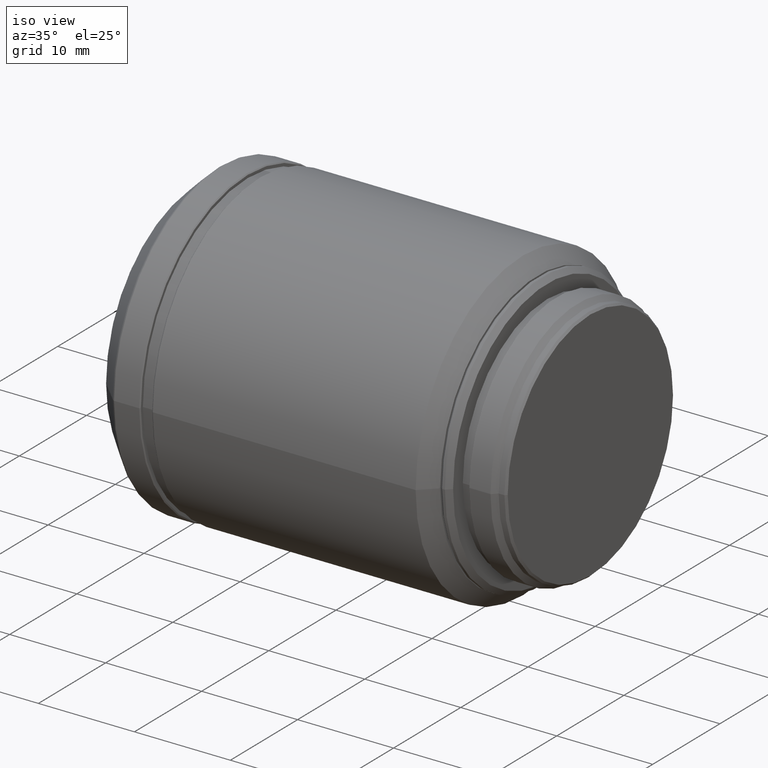
[diagram: clean part render]
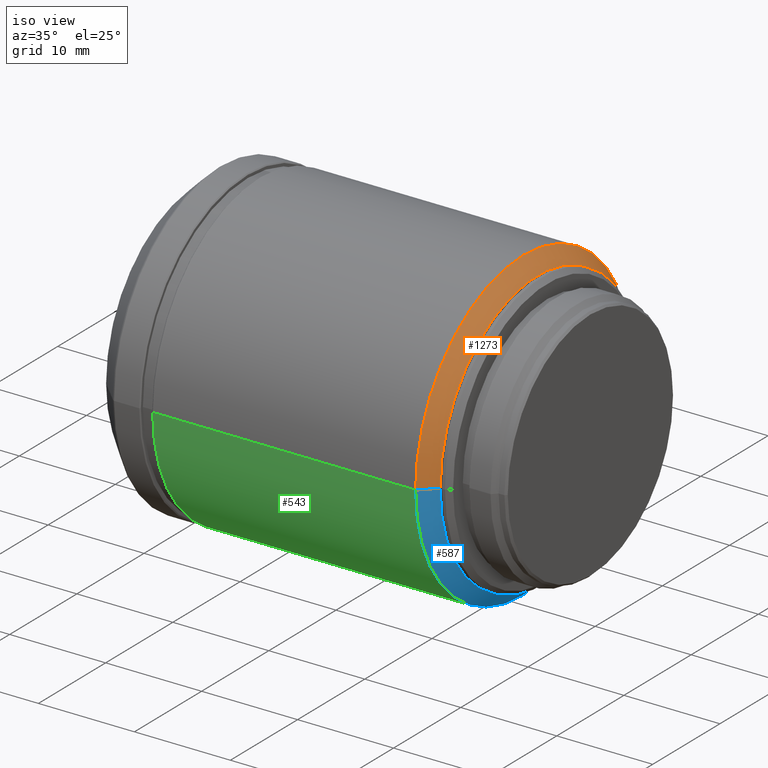
[diagram: same view with three faces highlighted in distinct colors, each labeled with its STEP entity id]
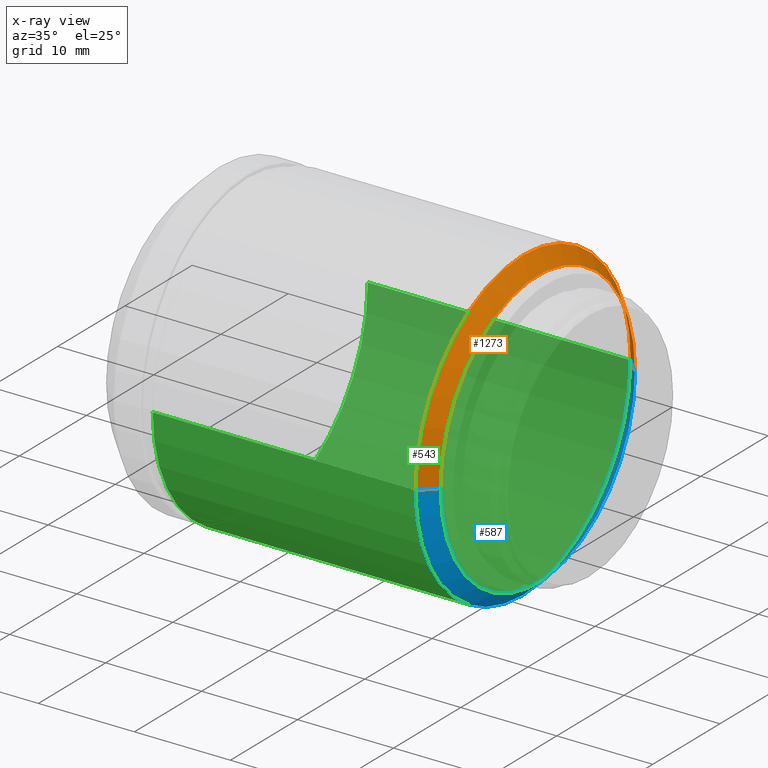
[diagram: x-ray of the same camera — body ghosted, the three highlighted faces saturated]
A machine part, iso view with three faces highlighted in distinct colors.
The next image is the same camera in x-ray (body ghosted, the three faces saturated) — at least one of them is partly hidden behind the body in this view.
Their STEP definitions:

[orange] entity #1273 — the highlighted conical surface has half-angle 45 deg.
#121 = CARTESIAN_POINT ( 'NONE',  ( 27.76000000000000156, -1.415423776414540206E-16, 0.000000000000000000 ) ) ;
#123 = DIRECTION ( 'NONE',  ( -2.168404344971008868E-16, 1.000000000000000000, 0.000000000000000000 ) ) ;
#196 = CARTESIAN_POINT ( 'NONE',  ( 26.25999999999999801, -16.00000000000000000, -1.959434878635769865E-15 ) ) ;
#206 = AXIS2_PLACEMENT_3D ( 'NONE', #699, #1174, #123 ) ;
#221 = VERTEX_POINT ( 'NONE', #1239 ) ;
#254 = VECTOR ( 'NONE', #1331, 1000.000000000000000 ) ;
#266 = EDGE_CURVE ( 'NONE', #1405, #1027, #1367, .T. ) ;
#331 = LINE ( 'NONE', #690, #790 ) ;
#345 = CARTESIAN_POINT ( 'NONE',  ( 27.76000000000000156, -14.50000000000000000, -1.775737858763660240E-15 ) ) ;
#366 = ORIENTED_EDGE ( 'NONE', *, *, #997, .T. ) ;
#381 = EDGE_CURVE ( 'NONE', #810, #1027, #1238, .T. ) ;
#526 = CARTESIAN_POINT ( 'NONE',  ( 26.25999999999999801, -16.00000000000000000, -1.959434878635769865E-15 ) ) ;
#578 = FACE_OUTER_BOUND ( 'NONE', #1399, .T. ) ;
#586 = ORIENTED_EDGE ( 'NONE', *, *, #714, .F. ) ;
#632 = DIRECTION ( 'NONE',  ( -2.168404344971008868E-16, 1.000000000000000000, 0.000000000000000000 ) ) ;
#662 = CONICAL_SURFACE ( 'NONE', #206, 16.00000000000000000, 0.7853981633974476129 ) ;
#690 = CARTESIAN_POINT ( 'NONE',  ( 26.25999999999999801, 16.00000000000000000, 0.000000000000000000 ) ) ;
#699 = CARTESIAN_POINT ( 'NONE',  ( 26.25999999999999801, -3.538559441036359760E-16, 0.000000000000000000 ) ) ;
#714 = EDGE_CURVE ( 'NONE', #221, #810, #1043, .T. ) ;
#736 = CARTESIAN_POINT ( 'NONE',  ( 26.25999999999999801, 16.00000000000000000, 0.000000000000000000 ) ) ;
#790 = VECTOR ( 'NONE', #1286, 1000.000000000000000 ) ;
#810 = VERTEX_POINT ( 'NONE', #345 ) ;
#979 = DIRECTION ( 'NONE',  ( 1.000000000000000000, 1.415423776414539960E-16, 0.000000000000000000 ) ) ;
#991 = CARTESIAN_POINT ( 'NONE',  ( 26.25999999999999801, -3.538559441036359760E-16, 0.000000000000000000 ) ) ;
#997 = EDGE_CURVE ( 'NONE', #221, #1405, #331, .T. ) ;
#1027 = VERTEX_POINT ( 'NONE', #196 ) ;
#1043 = CIRCLE ( 'NONE', #1470, 14.50000000000000000 ) ;
#1050 = DIRECTION ( 'NONE',  ( -2.392722035830078972E-16, 1.000000000000000000, 0.000000000000000000 ) ) ;
#1062 = ORIENTED_EDGE ( 'NONE', *, *, #266, .T. ) ;
#1174 = DIRECTION ( 'NONE',  ( -1.000000000000000000, -1.415423776414539960E-16, 0.000000000000000000 ) ) ;
#1176 = ORIENTED_EDGE ( 'NONE', *, *, #381, .F. ) ;
#1238 = LINE ( 'NONE', #526, #254 ) ;
#1239 = CARTESIAN_POINT ( 'NONE',  ( 27.76000000000000156, 14.50000000000000000, 0.000000000000000000 ) ) ;
#1273 = ADVANCED_FACE ( 'NONE', ( #578 ), #662, .T. ) ;
#1286 = DIRECTION ( 'NONE',  ( -0.7071067811865480168, 0.7071067811865470176, 0.000000000000000000 ) ) ;
#1293 = AXIS2_PLACEMENT_3D ( 'NONE', #991, #979, #632 ) ;
#1321 = DIRECTION ( 'NONE',  ( 1.000000000000000000, 1.415423776414539960E-16, 0.000000000000000000 ) ) ;
#1331 = DIRECTION ( 'NONE',  ( -0.7071067811865470176, -0.7071067811865480168, -8.659560562354929160E-17 ) ) ;
#1367 = CIRCLE ( 'NONE', #1293, 16.00000000000000000 ) ;
#1399 = EDGE_LOOP ( 'NONE', ( #366, #1062, #1176, #586 ) ) ;
#1405 = VERTEX_POINT ( 'NONE', #736 ) ;
#1470 = AXIS2_PLACEMENT_3D ( 'NONE', #121, #1321, #1050 ) ;

[blue] entity #587 — the highlighted conical surface has half-angle 45 deg.
#12 = ORIENTED_EDGE ( 'NONE', *, *, #997, .F. ) ;
#135 = CIRCLE ( 'NONE', #273, 16.00000000000000000 ) ;
#196 = CARTESIAN_POINT ( 'NONE',  ( 26.25999999999999801, -16.00000000000000000, -1.959434878635769865E-15 ) ) ;
#221 = VERTEX_POINT ( 'NONE', #1239 ) ;
#254 = VECTOR ( 'NONE', #1331, 1000.000000000000000 ) ;
#259 = DIRECTION ( 'NONE',  ( 1.000000000000000000, 1.415423776414539960E-16, 0.000000000000000000 ) ) ;
#273 = AXIS2_PLACEMENT_3D ( 'NONE', #618, #1461, #754 ) ;
#331 = LINE ( 'NONE', #690, #790 ) ;
#338 = DIRECTION ( 'NONE',  ( -1.000000000000000000, -1.415423776414539960E-16, 0.000000000000000000 ) ) ;
#345 = CARTESIAN_POINT ( 'NONE',  ( 27.76000000000000156, -14.50000000000000000, -1.775737858763660240E-15 ) ) ;
#381 = EDGE_CURVE ( 'NONE', #810, #1027, #1238, .T. ) ;
#388 = ORIENTED_EDGE ( 'NONE', *, *, #1317, .T. ) ;
#448 = CARTESIAN_POINT ( 'NONE',  ( 26.25999999999999801, -3.538559441036359760E-16, 0.000000000000000000 ) ) ;
#526 = CARTESIAN_POINT ( 'NONE',  ( 26.25999999999999801, -16.00000000000000000, -1.959434878635769865E-15 ) ) ;
#583 = DIRECTION ( 'NONE',  ( -2.392722035830078972E-16, 1.000000000000000000, 0.000000000000000000 ) ) ;
#587 = ADVANCED_FACE ( 'NONE', ( #1278 ), #1246, .T. ) ;
#618 = CARTESIAN_POINT ( 'NONE',  ( 26.25999999999999801, -3.538559441036359760E-16, 0.000000000000000000 ) ) ;
#629 = EDGE_LOOP ( 'NONE', ( #388, #12, #1152, #826 ) ) ;
#690 = CARTESIAN_POINT ( 'NONE',  ( 26.25999999999999801, 16.00000000000000000, 0.000000000000000000 ) ) ;
#736 = CARTESIAN_POINT ( 'NONE',  ( 26.25999999999999801, 16.00000000000000000, 0.000000000000000000 ) ) ;
#746 = CIRCLE ( 'NONE', #944, 14.50000000000000000 ) ;
#754 = DIRECTION ( 'NONE',  ( -2.168404344971008868E-16, 1.000000000000000000, 0.000000000000000000 ) ) ;
#790 = VECTOR ( 'NONE', #1286, 1000.000000000000000 ) ;
#810 = VERTEX_POINT ( 'NONE', #345 ) ;
#826 = ORIENTED_EDGE ( 'NONE', *, *, #381, .T. ) ;
#944 = AXIS2_PLACEMENT_3D ( 'NONE', #1063, #259, #583 ) ;
#997 = EDGE_CURVE ( 'NONE', #221, #1405, #331, .T. ) ;
#1027 = VERTEX_POINT ( 'NONE', #196 ) ;
#1063 = CARTESIAN_POINT ( 'NONE',  ( 27.76000000000000156, -1.415423776414540206E-16, 0.000000000000000000 ) ) ;
#1152 = ORIENTED_EDGE ( 'NONE', *, *, #1195, .F. ) ;
#1195 = EDGE_CURVE ( 'NONE', #810, #221, #746, .T. ) ;
#1238 = LINE ( 'NONE', #526, #254 ) ;
#1239 = CARTESIAN_POINT ( 'NONE',  ( 27.76000000000000156, 14.50000000000000000, 0.000000000000000000 ) ) ;
#1246 = CONICAL_SURFACE ( 'NONE', #1369, 16.00000000000000000, 0.7853981633974476129 ) ;
#1260 = DIRECTION ( 'NONE',  ( -2.168404344971008868E-16, 1.000000000000000000, 0.000000000000000000 ) ) ;
#1278 = FACE_OUTER_BOUND ( 'NONE', #629, .T. ) ;
#1286 = DIRECTION ( 'NONE',  ( -0.7071067811865480168, 0.7071067811865470176, 0.000000000000000000 ) ) ;
#1317 = EDGE_CURVE ( 'NONE', #1027, #1405, #135, .T. ) ;
#1331 = DIRECTION ( 'NONE',  ( -0.7071067811865470176, -0.7071067811865480168, -8.659560562354929160E-17 ) ) ;
#1369 = AXIS2_PLACEMENT_3D ( 'NONE', #448, #338, #1260 ) ;
#1405 = VERTEX_POINT ( 'NONE', #736 ) ;
#1461 = DIRECTION ( 'NONE',  ( 1.000000000000000000, 1.415423776414539960E-16, 0.000000000000000000 ) ) ;

[green] entity #543 — the highlighted cylindrical surface (partial cylindrical patch) has radius 16 mm, axis along (1, 0, 0).
#28 = LINE ( 'NONE', #493, #1467 ) ;
#104 = CARTESIAN_POINT ( 'NONE',  ( 12.56000000000000050, -2.292986517791559882E-15, 0.000000000000000000 ) ) ;
#135 = CIRCLE ( 'NONE', #273, 16.00000000000000000 ) ;
#196 = CARTESIAN_POINT ( 'NONE',  ( 26.25999999999999801, -16.00000000000000000, -1.959434878635769865E-15 ) ) ;
#246 = ORIENTED_EDGE ( 'NONE', *, *, #1452, .T. ) ;
#268 = VERTEX_POINT ( 'NONE', #840 ) ;
#273 = AXIS2_PLACEMENT_3D ( 'NONE', #618, #1461, #754 ) ;
#359 = DIRECTION ( 'NONE',  ( 1.000000000000000000, 1.415423776414539960E-16, 0.000000000000000000 ) ) ;
#396 = CARTESIAN_POINT ( 'NONE',  ( 12.56000000000000050, 16.00000000000000000, -1.959434878635769865E-15 ) ) ;
#428 = ORIENTED_EDGE ( 'NONE', *, *, #1055, .T. ) ;
#440 = DIRECTION ( 'NONE',  ( 1.000000000000000000, 1.415423776414539960E-16, 0.000000000000000000 ) ) ;
#493 = CARTESIAN_POINT ( 'NONE',  ( 12.56000000000000050, -16.00000000000000000, 0.000000000000000000 ) ) ;
#543 = ADVANCED_FACE ( 'NONE', ( #673 ), #914, .T. ) ;
#562 = CARTESIAN_POINT ( 'NONE',  ( -1.139999999999999902, -16.00000000000000000, 0.000000000000000000 ) ) ;
#618 = CARTESIAN_POINT ( 'NONE',  ( 26.25999999999999801, -3.538559441036359760E-16, 0.000000000000000000 ) ) ;
#643 = AXIS2_PLACEMENT_3D ( 'NONE', #104, #440, #802 ) ;
#673 = FACE_OUTER_BOUND ( 'NONE', #1157, .T. ) ;
#736 = CARTESIAN_POINT ( 'NONE',  ( 26.25999999999999801, 16.00000000000000000, 0.000000000000000000 ) ) ;
#754 = DIRECTION ( 'NONE',  ( -2.168404344971008868E-16, 1.000000000000000000, 0.000000000000000000 ) ) ;
#802 = DIRECTION ( 'NONE',  ( 1.084202172485504434E-16, -1.000000000000000000, 0.000000000000000000 ) ) ;
#840 = CARTESIAN_POINT ( 'NONE',  ( -1.139999999999999902, 16.00000000000000000, -1.959434878635769865E-15 ) ) ;
#856 = DIRECTION ( 'NONE',  ( 1.000000000000000000, 1.415423776414539960E-16, 0.000000000000000000 ) ) ;
#884 = LINE ( 'NONE', #396, #1342 ) ;
#901 = DIRECTION ( 'NONE',  ( -1.355252715606880543E-16, 1.000000000000000000, 0.000000000000000000 ) ) ;
#909 = CARTESIAN_POINT ( 'NONE',  ( -1.139999999999999902, -4.232117091479479794E-15, 0.000000000000000000 ) ) ;
#914 = CYLINDRICAL_SURFACE ( 'NONE', #643, 16.00000000000000000 ) ;
#960 = VERTEX_POINT ( 'NONE', #562 ) ;
#987 = AXIS2_PLACEMENT_3D ( 'NONE', #909, #1498, #901 ) ;
#1027 = VERTEX_POINT ( 'NONE', #196 ) ;
#1055 = EDGE_CURVE ( 'NONE', #960, #268, #1472, .T. ) ;
#1059 = ORIENTED_EDGE ( 'NONE', *, *, #1255, .F. ) ;
#1157 = EDGE_LOOP ( 'NONE', ( #428, #246, #1310, #1059 ) ) ;
#1255 = EDGE_CURVE ( 'NONE', #960, #1027, #28, .T. ) ;
#1310 = ORIENTED_EDGE ( 'NONE', *, *, #1317, .F. ) ;
#1317 = EDGE_CURVE ( 'NONE', #1027, #1405, #135, .T. ) ;
#1342 = VECTOR ( 'NONE', #856, 1000.000000000000000 ) ;
#1405 = VERTEX_POINT ( 'NONE', #736 ) ;
#1452 = EDGE_CURVE ( 'NONE', #268, #1405, #884, .T. ) ;
#1461 = DIRECTION ( 'NONE',  ( 1.000000000000000000, 1.415423776414539960E-16, 0.000000000000000000 ) ) ;
#1467 = VECTOR ( 'NONE', #359, 1000.000000000000000 ) ;
#1472 = CIRCLE ( 'NONE', #987, 16.00000000000000000 ) ;
#1498 = DIRECTION ( 'NONE',  ( 1.000000000000000000, 1.415423776414539960E-16, 0.000000000000000000 ) ) ;